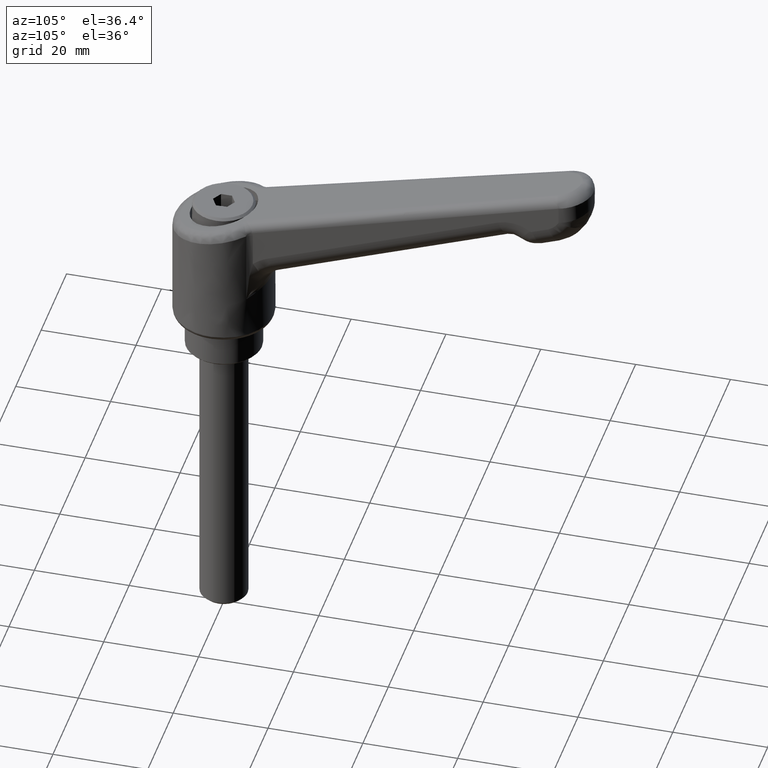
[diagram: clean part render]
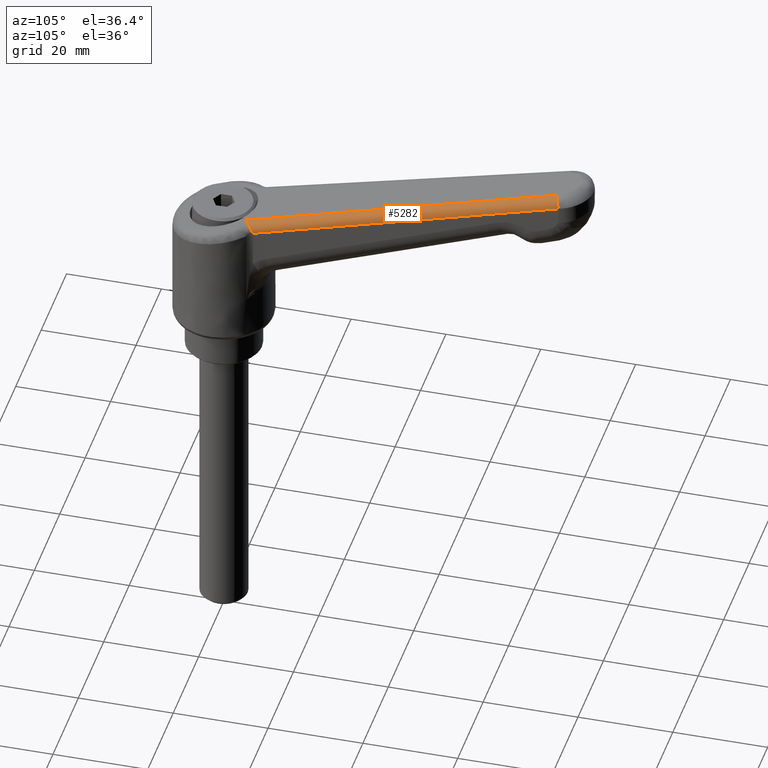
[diagram: same view with one face highlighted and labeled with its STEP entity id]
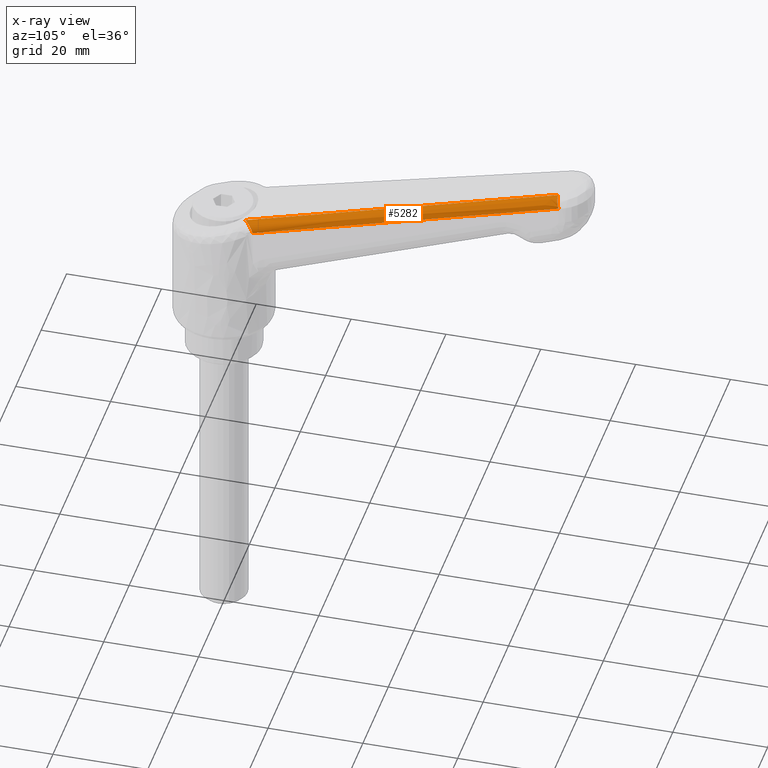
[diagram: x-ray of the same camera — body ghosted, the highlighted face saturated]
A machine part, auxiliary view. The second image highlights one B-rep face of the part: STEP entity #5282.
The next image is the same camera in x-ray: the body ghosted, the highlighted face saturated — about 0% of this face is hidden behind the body in this view.
In plain terms, the highlighted face is a freeform B-spline surface patch.
Its self-contained STEP definition (entity closure, byte-faithful):
#4459=CARTESIAN_POINT('',(8.012310873974581,-7.484620097367070,26.550085542636701));
#4460=VERTEX_POINT('',#4459);
#4551=CARTESIAN_POINT('',(5.940270675266100,-5.519973294428710,28.072980452360650));
#4552=VERTEX_POINT('',#4551);
#4553=CARTESIAN_POINT('',(5.940270675266100,-5.519973294428710,28.072980452360650));
#4554=CARTESIAN_POINT('',(5.964480614774279,-5.547432011839613,28.079545863633360));
#4555=CARTESIAN_POINT('',(5.989265997644733,-5.575478822556796,28.085646383558871));
#4556=CARTESIAN_POINT('',(6.038516155136614,-5.631213356548575,28.096495456946311));
#4557=CARTESIAN_POINT('',(6.063177297555369,-5.659099459909704,28.101299809255352));
#4558=CARTESIAN_POINT('',(6.137280046364706,-5.742805844437203,28.113834462730111));
#4559=CARTESIAN_POINT('',(6.236400805728932,-5.854542999162270,28.125544736099268));
#4560=CARTESIAN_POINT('',(6.336298588807207,-5.966438066856086,28.126912716068549));
#4561=CARTESIAN_POINT('',(6.436675591760115,-6.078354399790436,28.122829516031480));
#4562=CARTESIAN_POINT('',(6.487147811663362,-6.134369565379744,28.118035300121900));
#4563=CARTESIAN_POINT('',(6.637506585705856,-6.300205416661115,28.095263813924849));
#4564=CARTESIAN_POINT('',(6.736954891199125,-6.408531870184022,28.068977035153210));
#4565=CARTESIAN_POINT('',(6.885342057876265,-6.566842114411010,28.011153382002099));
#4566=CARTESIAN_POINT('',(6.934758550251050,-6.618999503856220,27.988751941200920));
#4567=CARTESIAN_POINT('',(7.033042439528751,-6.721321435379911,27.937412480050320));
#4568=CARTESIAN_POINT('',(7.081414836673228,-6.770971804287339,27.908742853052569));
#4569=CARTESIAN_POINT('',(7.224287841670980,-6.915104772998762,27.813444946194931));
#4570=CARTESIAN_POINT('',(7.316569309393523,-7.004842122085285,27.737656338635571));
#4571=CARTESIAN_POINT('',(7.428105372921928,-7.107278983547890,27.625106711646961));
#4572=CARTESIAN_POINT('',(7.450184111504109,-7.127238494884410,27.601723402679461));
#4573=CARTESIAN_POINT('',(7.493405659117809,-7.165635710814681,27.553690359204179));
#4574=CARTESIAN_POINT('',(7.514615506485982,-7.184135410504219,27.528974407131280));
#4575=CARTESIAN_POINT('',(7.577044525621799,-7.237497692518466,27.452706481559691));
#4576=CARTESIAN_POINT('',(7.617067206689870,-7.270230299298772,27.399041363525900));
#4577=CARTESIAN_POINT('',(7.693841030512747,-7.329649397719105,27.285803436918680));
#4578=CARTESIAN_POINT('',(7.730593603946318,-7.356338908162788,27.226233430740340));
#4579=CARTESIAN_POINT('',(7.783102198798400,-7.391379817879831,27.132058676845709));
#4580=CARTESIAN_POINT('',(7.800105829996444,-7.402179796499143,27.099957161307181));
#4581=CARTESIAN_POINT('',(7.832689216794131,-7.421735625142204,27.035147266450998));
#4582=CARTESIAN_POINT('',(7.848333675848410,-7.430535310697348,27.002324726392668));
#4583=CARTESIAN_POINT('',(7.923350869016922,-7.469653137180289,26.836138127920091));
#4584=CARTESIAN_POINT('',(7.973256513195769,-7.485525234275999,26.696643363037150));
#4585=CARTESIAN_POINT('',(8.012310873974581,-7.484620097367070,26.550085542636701));
#4586=B_SPLINE_CURVE_WITH_KNOTS('',3,(#4553,#4554,#4555,#4556,#4557,#4558,#4559,#4560,#4561,#4562,#4563,#4564,#4565,#4566,#4567,#4568,#4569,#4570,#4571,#4572,#4573,#4574,#4575,#4576,#4577,#4578,#4579,#4580,#4581,#4582,#4583,#4584,#4585),.UNSPECIFIED.,.F.,.U.,(4,2,2,1,2,2,2,2,2,2,2,2,2,2,2,2,4),(0.0,0.031250000000000,0.062500000000000,0.124999999999998,0.187499999999997,0.249999999999996,0.374999999999993,0.437499999999992,0.499999999999991,0.624999999999988,0.656249999999988,0.687499999999988,0.749999999999990,0.812499999999992,0.843749999999994,0.874999999999995,1.0),.UNSPECIFIED.);
#4587=EDGE_CURVE('',#4552,#4460,#4586,.T.);
#5239=CARTESIAN_POINT('',(4.873917458269680,-7.557280377013173,25.680912646936669));
#5240=CARTESIAN_POINT('',(73.825326263893544,-5.959239498040288,44.379611026211457));
#5241=CARTESIAN_POINT('',(4.313314711943701,-7.588994246662201,27.750844383067999));
#5242=CARTESIAN_POINT('',(73.264723517567560,-5.990953367689299,46.449542762342787));
#5243=CARTESIAN_POINT('',(4.297965351809046,-5.448038072935896,27.624473261815279));
#5244=CARTESIAN_POINT('',(73.249374157432925,-3.849997193962995,46.323171641090063));
#5252=(BOUNDED_SURFACE()B_SPLINE_SURFACE(1,2,((#5239,#5241,#5243),(#5240,#5242,#5244)),.UNSPECIFIED.,.F.,.F.,.U.)B_SPLINE_SURFACE_WITH_KNOTS((2,2),(3,3),(0.0,71.459721745961403),(0.0,3.478498999687471),.UNSPECIFIED.)GEOMETRIC_REPRESENTATION_ITEM()RATIONAL_B_SPLINE_SURFACE(((1.0,0.681998360062499,1.0),(1.0,0.681998360062499,1.0)))REPRESENTATION_ITEM('')SURFACE());
#5253=CARTESIAN_POINT('',(71.569214214229888,-3.998934980117811,45.870670759820300));
#5254=VERTEX_POINT('',#5253);
#5255=CARTESIAN_POINT('',(5.940270675266100,-5.519973294428710,28.072980452360650));
#5256=CARTESIAN_POINT('',(71.569214214229888,-3.998934980117811,45.870670759820300));
#5257=QUASI_UNIFORM_CURVE('',1,(#5255,#5256),.UNSPECIFIED.,.F.,.U.);
#5258=EDGE_CURVE('',#4552,#5254,#5257,.T.);
#5259=ORIENTED_EDGE('',*,*,#5258,.F.);
#5260=ORIENTED_EDGE('',*,*,#4587,.T.);
#5261=CARTESIAN_POINT('',(72.139020671948700,-5.998398053955600,43.940390183805903));
#5262=VERTEX_POINT('',#5261);
#5263=CARTESIAN_POINT('',(72.139020671948700,-5.998398053955600,43.940390183805903));
#5264=CARTESIAN_POINT('',(8.012310873974581,-7.484620097367070,26.550085542636701));
#5265=QUASI_UNIFORM_CURVE('',1,(#5263,#5264),.UNSPECIFIED.,.F.,.U.);
#5266=EDGE_CURVE('',#5262,#4460,#5265,.T.);
#5267=ORIENTED_EDGE('',*,*,#5266,.F.);
#5268=CARTESIAN_POINT('',(72.139020671948700,-5.998398053955600,43.940390183805903));
#5269=CARTESIAN_POINT('',(72.070264388606773,-6.000290975916458,44.194090600333602));
#5270=CARTESIAN_POINT('',(71.952244137621165,-5.913960206097216,44.621911955140114));
#5271=CARTESIAN_POINT('',(71.810546421692081,-5.615570417976060,45.118920777363947));
#5272=CARTESIAN_POINT('',(71.713293813037424,-5.281977615197994,45.449029821091550));
#5273=CARTESIAN_POINT('',(71.643993736400077,-4.922412136363629,45.673844270497078));
#5274=CARTESIAN_POINT('',(71.590998386144520,-4.491550775288860,45.832441940332657));
#5275=CARTESIAN_POINT('',(71.573096611183459,-4.179580796192336,45.871792905273082));
#5276=CARTESIAN_POINT('',(71.569214214229888,-3.998934980117811,45.870670759820300));
#5277=B_SPLINE_CURVE_WITH_KNOTS('',3,(#5268,#5269,#5270,#5271,#5272,#5273,#5274,#5275,#5276),.UNSPECIFIED.,.F.,.U.,(4,1,1,1,1,1,4),(0.000000175691588,0.788452110881566,1.330532374549733,1.773984923687352,2.217507856746185,2.611742857992040,3.153801250755952),.UNSPECIFIED.);
#5278=EDGE_CURVE('',#5262,#5254,#5277,.T.);
#5279=ORIENTED_EDGE('',*,*,#5278,.T.);
#5280=EDGE_LOOP('',(#5259,#5260,#5267,#5279));
#5281=FACE_OUTER_BOUND('',#5280,.T.);
#5282=ADVANCED_FACE('',(#5281),#5252,.T.);